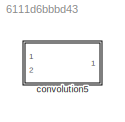
MODEL slx_6111d6bbbd43
KIND library
CONFIG AbsTol = auto
CONFIG FixedStep = auto
CONFIG MaxStep = auto
CONFIG MinStep = auto
CONFIG RelTol = 1e-3
CONFIG SampleTimeConstraint = Unconstrained
CONFIG Solver = VariableStepAuto
CONFIG SolverMode = Auto
CONFIG SolverName = VariableStepAuto
CONFIG StartTime = 0.0
CONFIG StopTime = 10.0
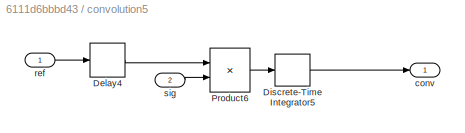
BLOCK [SubSystem] convolution5
  Ports = [2, 1]
  RequestExecContextInheritance = off
  Variant = off
BLOCK [Delay] convolution5/Delay4
  DelayLength = delay
  InputPortMap = u0
  Ports = [1, 1]
BLOCK [DiscreteIntegrator] convolution5/Discrete-Time Integrator5
  ICPrevOutput = DiscIntNeverNeededParam
  ICPrevScaledInput = DiscIntNeverNeededParam
  Ports = [1, 1]
  SampleTime = dt
BLOCK [Product] convolution5/Product6
  InputSameDT = off
  OutDataTypeStr = Inherit: Inherit via internal rule
  Ports = [2, 1]
  SaturateOnIntegerOverflow = off
BLOCK [Outport] convolution5/conv
  IconDisplay = Port number
BLOCK [Inport] convolution5/ref
  IconDisplay = Port number
BLOCK [Inport] convolution5/sig
  IconDisplay = Port number
  Port = 2
LINE convolution5/Delay4:1 -> convolution5/Product6:1
LINE convolution5/Discrete-Time Integrator5:1 -> convolution5/conv:1
LINE convolution5/Product6:1 -> convolution5/Discrete-Time Integrator5:1
LINE convolution5/ref:1 -> convolution5/Delay4:1
LINE convolution5/sig:1 -> convolution5/Product6:2
